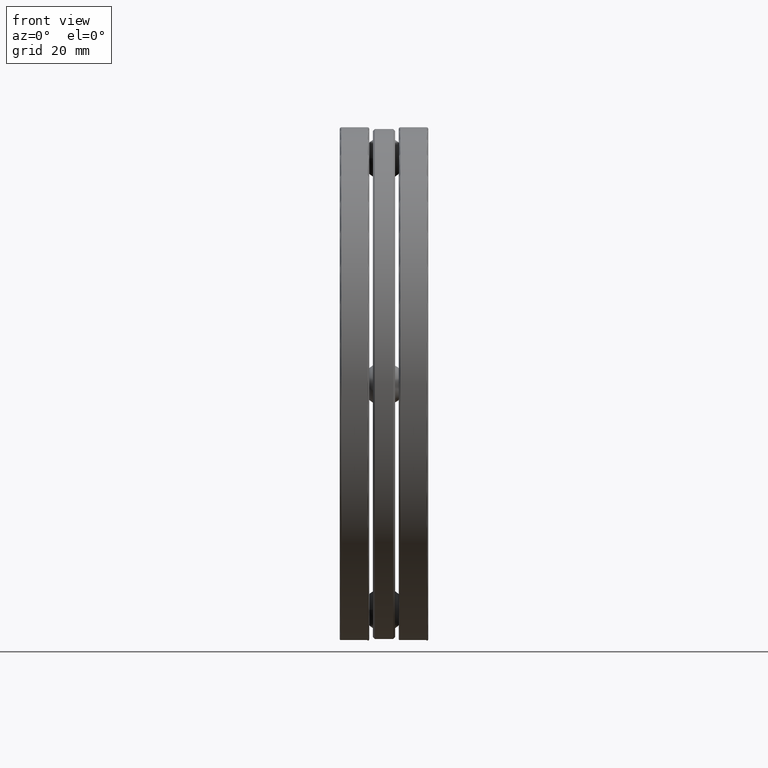
[diagram: clean part render]
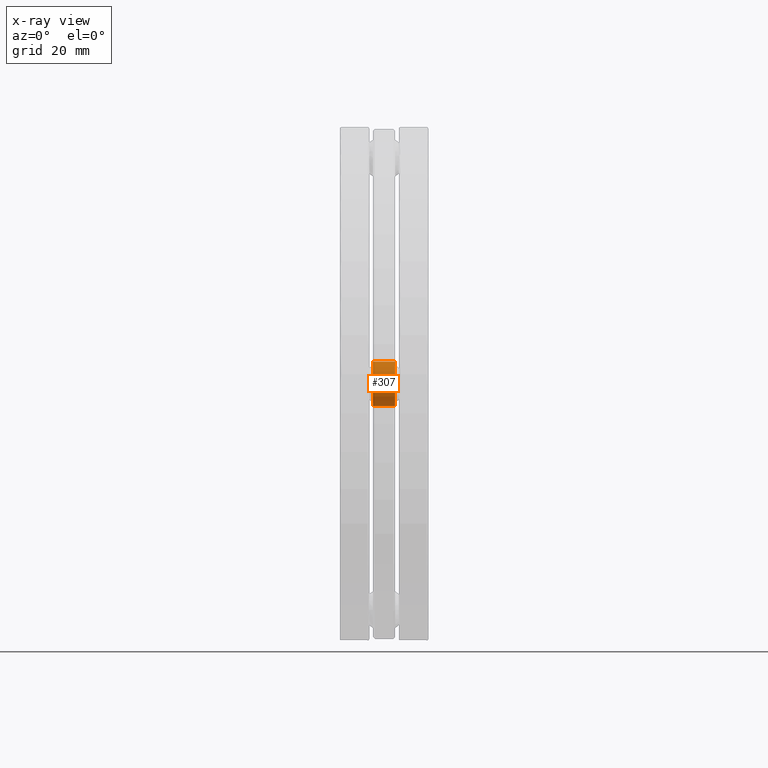
[diagram: x-ray — body ghosted, one internal face saturated and labeled with its STEP entity id]
A machine part, front view, then the same camera in x-ray: the body is ghosted and one INTERNAL B-rep face — a face not visible from any outside direction — is saturated and labeled: STEP entity #307.
In plain terms, the highlighted cylindrical surface (bore or boss wall) has radius 6.2738 mm, axis along (1, -0, -0).
Its self-contained STEP definition (entity closure, byte-faithful):
#28 = CARTESIAN_POINT ( 'NONE',  ( -0.1229999999999999600, 2.510000000000000200, 0.0000000000000000000 ) ) ;
#63 = CIRCLE ( 'NONE', #601, 0.2470000000000006600 ) ;
#92 = DIRECTION ( 'NONE',  ( 1.000000000000000000, -0.0000000000000000000, 0.0000000000000000000 ) ) ;
#132 = CYLINDRICAL_SURFACE ( 'NONE', #502, 0.2470000000000006600 ) ;
#159 = CARTESIAN_POINT ( 'NONE',  ( -0.1229999999999999600, 2.510000000000000200, -0.2470000000000006600 ) ) ;
#172 = DIRECTION ( 'NONE',  ( 0.0000000000000000000, 0.0000000000000000000, -1.000000000000000000 ) ) ;
#217 = EDGE_CURVE ( 'NONE', #626, #626, #408, .T. ) ;
#218 = VERTEX_POINT ( 'NONE', #360 ) ;
#219 = DIRECTION ( 'NONE',  ( 0.0000000000000000000, 0.0000000000000000000, -1.000000000000000000 ) ) ;
#252 = ORIENTED_EDGE ( 'NONE', *, *, #787, .T. ) ;
#257 = FACE_OUTER_BOUND ( 'NONE', #519, .T. ) ;
#307 = ADVANCED_FACE ( 'NONE', ( #257, #559 ), #132, .F. ) ;
#323 = EDGE_LOOP ( 'NONE', ( #553 ) ) ;
#353 = DIRECTION ( 'NONE',  ( 0.0000000000000000000, 0.0000000000000000000, -1.000000000000000000 ) ) ;
#360 = CARTESIAN_POINT ( 'NONE',  ( 0.1230000000000000300, 2.510000000000000200, -0.2470000000000006600 ) ) ;
#408 = CIRCLE ( 'NONE', #486, 0.2470000000000006600 ) ;
#478 = CARTESIAN_POINT ( 'NONE',  ( 0.1230000000000000300, 2.510000000000000200, 0.0000000000000000000 ) ) ;
#486 = AXIS2_PLACEMENT_3D ( 'NONE', #28, #534, #172 ) ;
#502 = AXIS2_PLACEMENT_3D ( 'NONE', #527, #716, #219 ) ;
#519 = EDGE_LOOP ( 'NONE', ( #252 ) ) ;
#527 = CARTESIAN_POINT ( 'NONE',  ( -0.4920393700787402100, 2.510000000000000200, 0.0000000000000000000 ) ) ;
#534 = DIRECTION ( 'NONE',  ( -1.000000000000000000, -0.0000000000000000000, -0.0000000000000000000 ) ) ;
#553 = ORIENTED_EDGE ( 'NONE', *, *, #217, .T. ) ;
#559 = FACE_OUTER_BOUND ( 'NONE', #323, .T. ) ;
#601 = AXIS2_PLACEMENT_3D ( 'NONE', #478, #92, #353 ) ;
#626 = VERTEX_POINT ( 'NONE', #159 ) ;
#716 = DIRECTION ( 'NONE',  ( 1.000000000000000000, -0.0000000000000000000, -0.0000000000000000000 ) ) ;
#787 = EDGE_CURVE ( 'NONE', #218, #218, #63, .T. ) ;